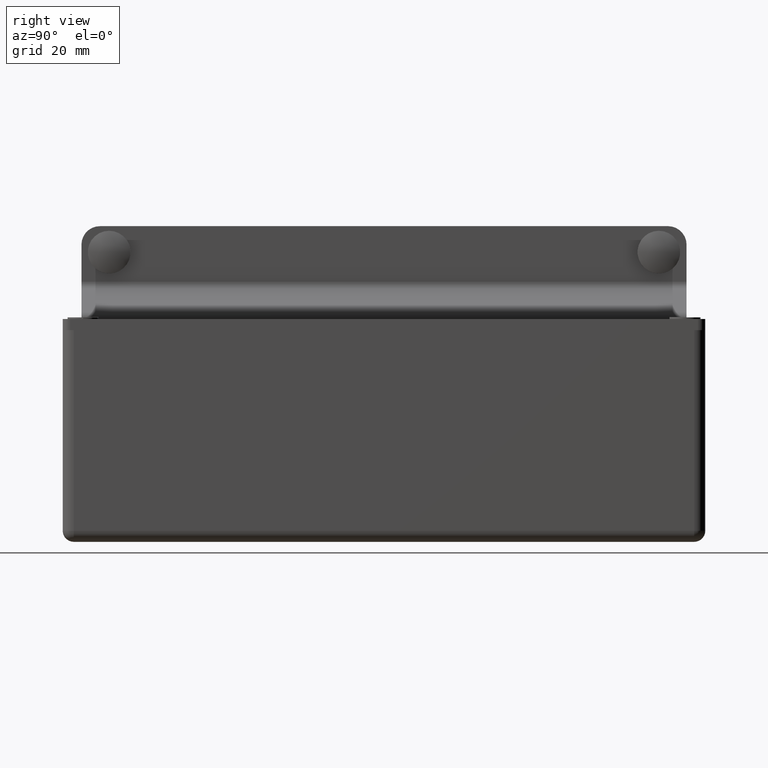
[diagram: clean part render]
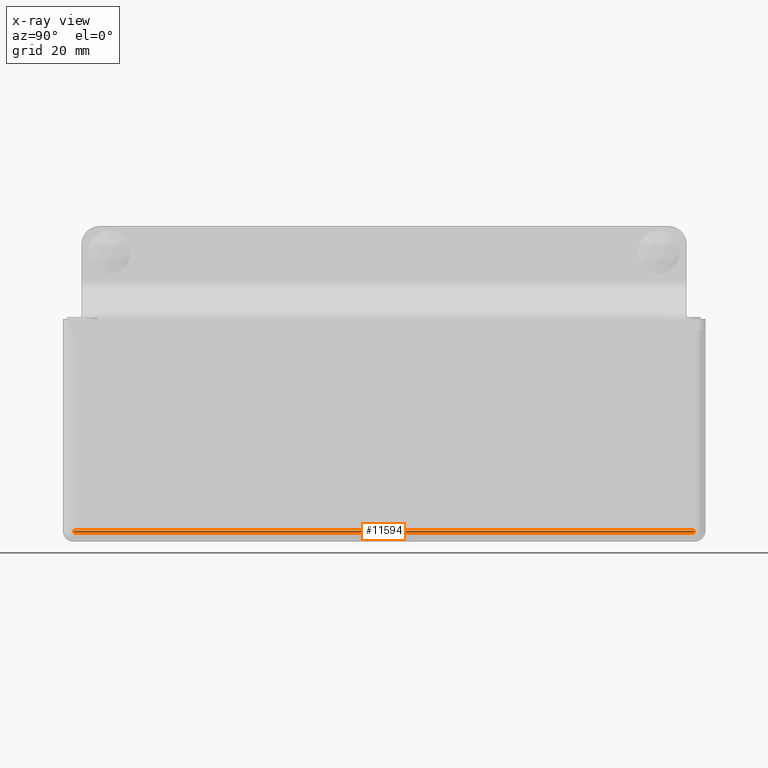
[diagram: x-ray — body ghosted, one internal face saturated and labeled with its STEP entity id]
A machine part, right view, then the same camera in x-ray: the body is ghosted and one INTERNAL B-rep face — a face not visible from any outside direction — is saturated and labeled: STEP entity #11594.
In plain terms, the highlighted cylindrical surface (edge-blend (fillet) strip) has radius 0.5 mm, axis along (0, -1, 0).
Its self-contained STEP definition (entity closure, byte-faithful):
#7 = CARTESIAN_POINT ( 'NONE',  ( 11.99999999999999467, 86.50000000000000000, -27.49999999999999645 ) ) ;
#351 = ORIENTED_EDGE ( 'NONE', *, *, #563, .T. ) ;
#563 = EDGE_CURVE ( 'NONE', #8918, #8550, #7214, .T. ) ;
#858 = CARTESIAN_POINT ( 'NONE',  ( 11.99999999999999467, 83.49999999999998579, -26.99999999999999645 ) ) ;
#1897 = DIRECTION ( 'NONE',  ( 0.000000000000000000, -1.000000000000000000, 0.000000000000000000 ) ) ;
#1901 = VERTEX_POINT ( 'NONE', #5165 ) ;
#2486 = CARTESIAN_POINT ( 'NONE',  ( 12.49999999999999645, 86.50000000000000000, -26.99999999999999645 ) ) ;
#2664 = ORIENTED_EDGE ( 'NONE', *, *, #11347, .T. ) ;
#3004 = AXIS2_PLACEMENT_3D ( 'NONE', #8852, #4961, #9629 ) ;
#3103 = EDGE_LOOP ( 'NONE', ( #6061, #351, #3294, #2664 ) ) ;
#3294 = ORIENTED_EDGE ( 'NONE', *, *, #6567, .T. ) ;
#3303 = CIRCLE ( 'NONE', #3004, 0.5000000000000004441 ) ;
#4133 = VECTOR ( 'NONE', #13854, 1000.000000000000000 ) ;
#4961 = DIRECTION ( 'NONE',  ( 0.000000000000000000, -1.000000000000000000, 0.000000000000000000 ) ) ;
#5165 = CARTESIAN_POINT ( 'NONE',  ( 12.49999999999999645, 83.49999999999998579, -26.99999999999999645 ) ) ;
#5281 = CARTESIAN_POINT ( 'NONE',  ( 11.99999999999999467, 86.50000000000000000, -26.99999999999999645 ) ) ;
#5356 = DIRECTION ( 'NONE',  ( 0.000000000000000000, -1.000000000000000000, 0.000000000000000000 ) ) ;
#5750 = CIRCLE ( 'NONE', #11269, 0.5000000000000004441 ) ;
#6061 = ORIENTED_EDGE ( 'NONE', *, *, #13463, .F. ) ;
#6567 = EDGE_CURVE ( 'NONE', #8550, #7869, #3303, .T. ) ;
#6679 = CARTESIAN_POINT ( 'NONE',  ( 12.49999999999999645, -83.49999999999998579, -26.99999999999999645 ) ) ;
#7214 = LINE ( 'NONE', #7, #4133 ) ;
#7508 = CYLINDRICAL_SURFACE ( 'NONE', #10325, 0.5000000000000004441 ) ;
#7642 = DIRECTION ( 'NONE',  ( 0.000000000000000000, 0.000000000000000000, -1.000000000000000000 ) ) ;
#7869 = VERTEX_POINT ( 'NONE', #6679 ) ;
#8550 = VERTEX_POINT ( 'NONE', #12411 ) ;
#8770 = LINE ( 'NONE', #2486, #14009 ) ;
#8852 = CARTESIAN_POINT ( 'NONE',  ( 11.99999999999999645, -83.49999999999998579, -26.99999999999999645 ) ) ;
#8918 = VERTEX_POINT ( 'NONE', #12743 ) ;
#9408 = DIRECTION ( 'NONE',  ( 0.000000000000000000, 1.000000000000000000, -0.000000000000000000 ) ) ;
#9629 = DIRECTION ( 'NONE',  ( 0.000000000000000000, 0.000000000000000000, -1.000000000000000000 ) ) ;
#10005 = DIRECTION ( 'NONE',  ( 0.000000000000000000, 0.000000000000000000, -1.000000000000000000 ) ) ;
#10325 = AXIS2_PLACEMENT_3D ( 'NONE', #5281, #1897, #10005 ) ;
#10946 = FACE_OUTER_BOUND ( 'NONE', #3103, .T. ) ;
#11269 = AXIS2_PLACEMENT_3D ( 'NONE', #858, #5356, #7642 ) ;
#11347 = EDGE_CURVE ( 'NONE', #7869, #1901, #8770, .T. ) ;
#11594 = ADVANCED_FACE ( 'NONE', ( #10946 ), #7508, .F. ) ;
#12411 = CARTESIAN_POINT ( 'NONE',  ( 11.99999999999999467, -83.49999999999998579, -27.49999999999999645 ) ) ;
#12743 = CARTESIAN_POINT ( 'NONE',  ( 11.99999999999999467, 83.49999999999998579, -27.49999999999999645 ) ) ;
#13463 = EDGE_CURVE ( 'NONE', #8918, #1901, #5750, .T. ) ;
#13854 = DIRECTION ( 'NONE',  ( 0.000000000000000000, -1.000000000000000000, -0.000000000000000000 ) ) ;
#14009 = VECTOR ( 'NONE', #9408, 1000.000000000000000 ) ;